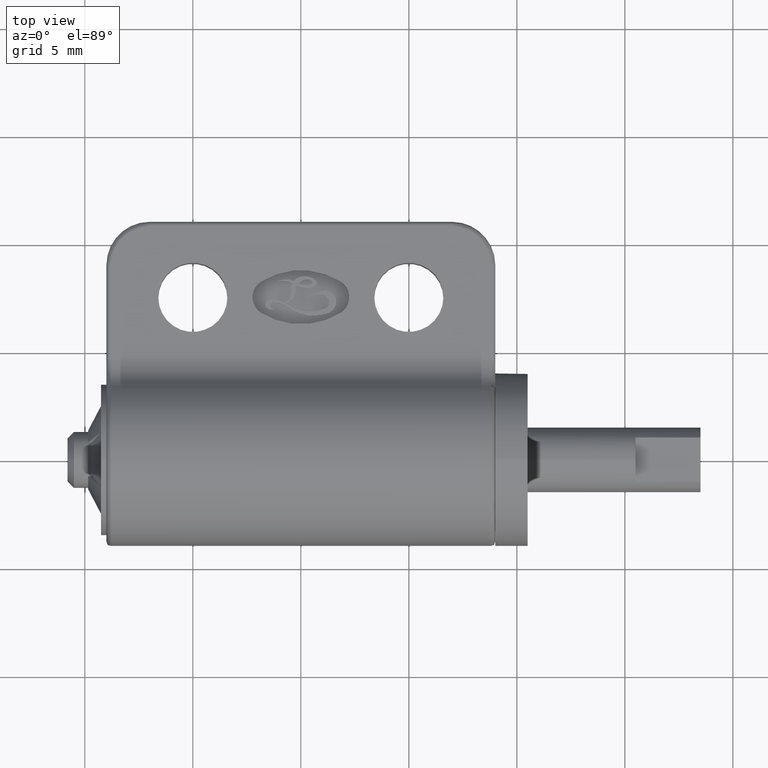
[diagram: clean part render]
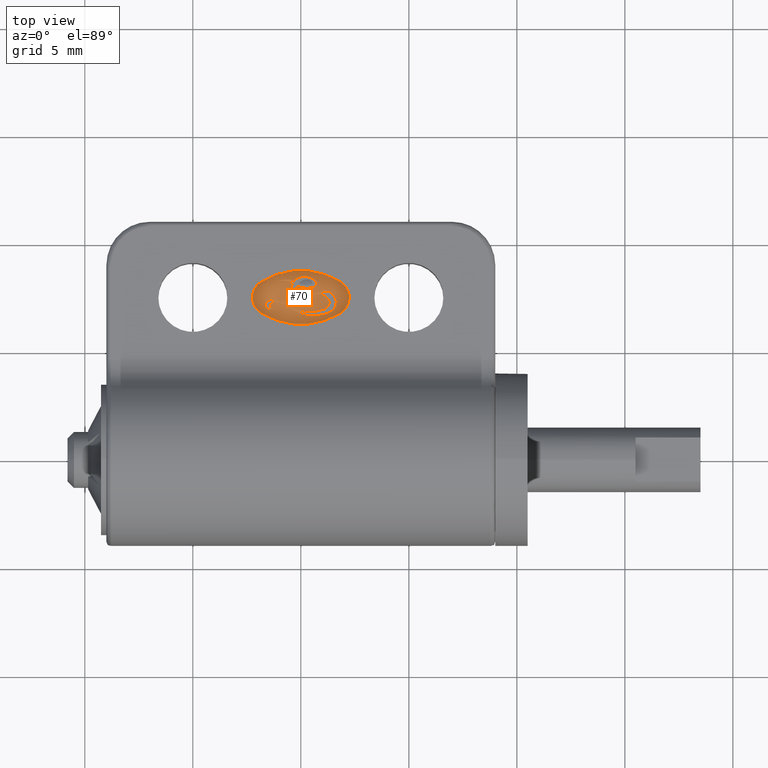
[diagram: same view with one face highlighted and labeled with its STEP entity id]
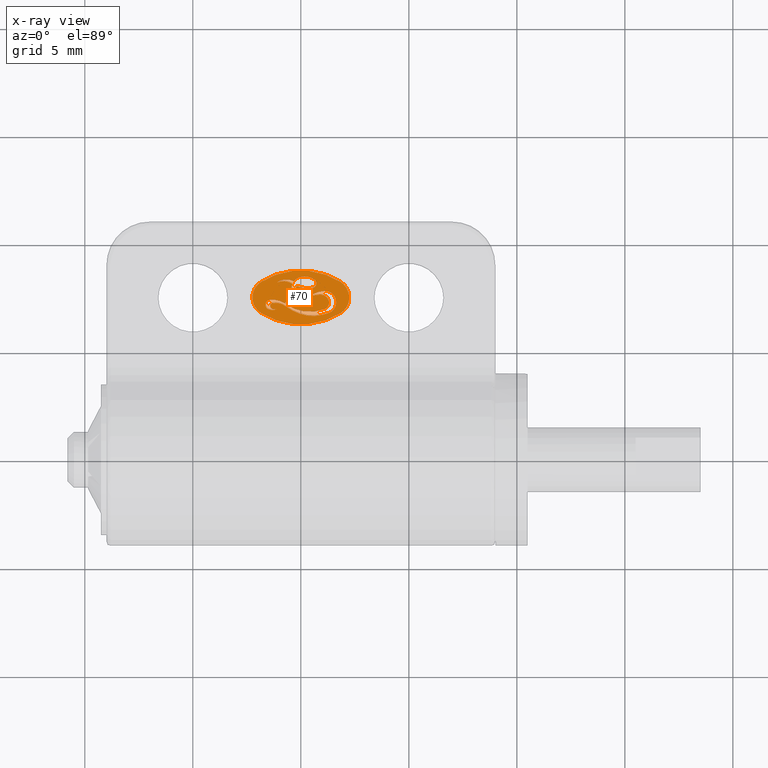
[diagram: x-ray of the same camera — body ghosted, the highlighted face saturated]
A machine part, top view. The second image highlights one B-rep face of the part: STEP entity #70.
The next image is the same camera in x-ray: the body ghosted, the highlighted face saturated — about 0% of this face is hidden behind the body in this view.
In plain terms, the highlighted planar face has unit normal (0, 0, 1).
Its self-contained STEP definition (entity closure, byte-faithful):
#70=ADVANCED_FACE('',(#488,#489),#487,.T.);
#487=PLANE('',#1847);
#488=FACE_OUTER_BOUND('',#1848,.T.);
#489=FACE_BOUND('',#1849,.T.);
#1844=CARTESIAN_POINT('',(-3.59707353473E+00,5.25520833333E+00,1.20000000000E+00));
#1845=DIRECTION('',(0.00000000000E+00,0.00000000000E+00,1.00000000000E+00));
#1846=DIRECTION('',(1.00000000000E+00,0.00000000000E+00,0.00000000000E+00));
#1847=AXIS2_PLACEMENT_3D('',#1844,#1845,#1846);
#1848=EDGE_LOOP('',(#2874,#2875,#2876,#2877));
#1849=EDGE_LOOP('',(#2878,#2879,#2880,#2881,#2882,#2883,#2884,#2885,#2886,#2887,#2888,#2889,#2890,#2891,#2892,#2893,#2894,#2895,#2896,#2897,#2898,#2899,#2900,#2901,#2902,#2903,#2904));
#2874=ORIENTED_EDGE('',*,*,#3654,.F.);
#2875=ORIENTED_EDGE('',*,*,#3663,.F.);
#2876=ORIENTED_EDGE('',*,*,#3660,.F.);
#2877=ORIENTED_EDGE('',*,*,#3657,.F.);
#2878=ORIENTED_EDGE('',*,*,#3664,.T.);
#2879=ORIENTED_EDGE('',*,*,#3665,.T.);
#2880=ORIENTED_EDGE('',*,*,#3666,.T.);
#2881=ORIENTED_EDGE('',*,*,#3667,.T.);
#2882=ORIENTED_EDGE('',*,*,#3668,.T.);
#2883=ORIENTED_EDGE('',*,*,#3669,.T.);
#2884=ORIENTED_EDGE('',*,*,#3670,.T.);
#2885=ORIENTED_EDGE('',*,*,#3671,.T.);
#2886=ORIENTED_EDGE('',*,*,#3672,.T.);
#2887=ORIENTED_EDGE('',*,*,#3673,.T.);
#2888=ORIENTED_EDGE('',*,*,#3674,.T.);
#2889=ORIENTED_EDGE('',*,*,#3675,.T.);
#2890=ORIENTED_EDGE('',*,*,#3676,.T.);
#2891=ORIENTED_EDGE('',*,*,#3677,.T.);
#2892=ORIENTED_EDGE('',*,*,#3678,.T.);
#2893=ORIENTED_EDGE('',*,*,#3679,.T.);
#2894=ORIENTED_EDGE('',*,*,#3680,.T.);
#2895=ORIENTED_EDGE('',*,*,#3681,.T.);
#2896=ORIENTED_EDGE('',*,*,#3682,.T.);
#2897=ORIENTED_EDGE('',*,*,#3683,.T.);
#2898=ORIENTED_EDGE('',*,*,#3684,.T.);
#2899=ORIENTED_EDGE('',*,*,#3685,.T.);
#2900=ORIENTED_EDGE('',*,*,#3686,.T.);
#2901=ORIENTED_EDGE('',*,*,#3687,.T.);
#2902=ORIENTED_EDGE('',*,*,#3688,.T.);
#2903=ORIENTED_EDGE('',*,*,#3689,.T.);
#2904=ORIENTED_EDGE('',*,*,#3690,.T.);
#3654=EDGE_CURVE('',#4634,#4641,#4642,.T.);
#3657=EDGE_CURVE('',#4641,#4661,#4662,.T.);
#3660=EDGE_CURVE('',#4661,#4681,#4682,.T.);
#3663=EDGE_CURVE('',#4681,#4634,#4700,.T.);
#3664=EDGE_CURVE('',#4706,#4707,#4708,.T.);
#3665=EDGE_CURVE('',#4707,#4714,#4715,.T.);
#3666=EDGE_CURVE('',#4714,#4721,#4722,.T.);
#3667=EDGE_CURVE('',#4721,#4728,#4729,.T.);
#3668=EDGE_CURVE('',#4728,#4735,#4736,.T.);
#3669=EDGE_CURVE('',#4735,#4742,#4743,.T.);
#3670=EDGE_CURVE('',#4742,#4749,#4750,.T.);
#3671=EDGE_CURVE('',#4749,#4756,#4757,.T.);
#3672=EDGE_CURVE('',#4756,#4763,#4764,.T.);
#3673=EDGE_CURVE('',#4763,#4770,#4771,.T.);
#3674=EDGE_CURVE('',#4770,#4777,#4778,.T.);
#3675=EDGE_CURVE('',#4777,#4784,#4785,.T.);
#3676=EDGE_CURVE('',#4784,#4791,#4792,.T.);
#3677=EDGE_CURVE('',#4791,#4798,#4799,.T.);
#3678=EDGE_CURVE('',#4798,#4805,#4806,.T.);
#3679=EDGE_CURVE('',#4805,#4812,#4813,.T.);
#3680=EDGE_CURVE('',#4812,#4819,#4820,.T.);
#3681=EDGE_CURVE('',#4819,#4826,#4827,.T.);
#3682=EDGE_CURVE('',#4826,#4833,#4834,.T.);
#3683=EDGE_CURVE('',#4833,#4840,#4841,.T.);
#3684=EDGE_CURVE('',#4840,#4847,#4848,.T.);
#3685=EDGE_CURVE('',#4847,#4854,#4855,.T.);
#3686=EDGE_CURVE('',#4854,#4861,#4862,.T.);
#3687=EDGE_CURVE('',#4861,#4868,#4869,.T.);
#3688=EDGE_CURVE('',#4868,#4875,#4876,.T.);
#3689=EDGE_CURVE('',#4875,#4882,#4883,.T.);
#3690=EDGE_CURVE('',#4882,#4706,#4889,.T.);
#4634=VERTEX_POINT('',#7084);
#4641=VERTEX_POINT('',#7088);
#4642=CIRCLE('',#7092,3.47222222222E+00);
#4661=VERTEX_POINT('',#7101);
#4662=CIRCLE('',#7105,8.52777777778E-01);
#4681=VERTEX_POINT('',#7114);
#4682=CIRCLE('',#7118,3.47222222222E+00);
#4700=CIRCLE('',#7129,8.52777777778E-01);
#4706=VERTEX_POINT('',#7130);
#4707=VERTEX_POINT('',#7131);
#4708=CIRCLE('',#7135,1.00000000000E+00);
#4714=VERTEX_POINT('',#7136);
#4715=CIRCLE('',#7140,6.38888888889E-01);
#4721=VERTEX_POINT('',#7141);
#4722=LINE('',#7142,#7143);
#4728=VERTEX_POINT('',#7145);
#4729=CIRCLE('',#7149,5.83333333333E-01);
#4735=VERTEX_POINT('',#7150);
#4736=CIRCLE('',#7154,7.77777777778E-01);
#4742=VERTEX_POINT('',#7155);
#4743=CIRCLE('',#7159,7.77777777778E-01);
#4749=VERTEX_POINT('',#7160);
#4750=CIRCLE('',#7164,5.83333333333E-01);
#4756=VERTEX_POINT('',#7165);
#4757=CIRCLE('',#7169,8.33333333333E-01);
#4763=VERTEX_POINT('',#7170);
#4764=CIRCLE('',#7174,2.08333333333E-01);
#4770=VERTEX_POINT('',#7175);
#4771=CIRCLE('',#7179,1.21621125314E+00);
#4777=VERTEX_POINT('',#7180);
#4778=CIRCLE('',#7184,5.55555555556E-01);
#4784=VERTEX_POINT('',#7185);
#4785=LINE('',#7186,#7187);
#4791=VERTEX_POINT('',#7189);
#4792=CIRCLE('',#7193,5.55555555556E-01);
#4798=VERTEX_POINT('',#7194);
#4799=CIRCLE('',#7198,1.00000000000E+00);
#4805=VERTEX_POINT('',#7199);
#4806=CIRCLE('',#7203,1.91091961229E+00);
#4812=VERTEX_POINT('',#7204);
#4813=CIRCLE('',#7208,3.19444444444E-01);
#4819=VERTEX_POINT('',#7209);
#4820=CIRCLE('',#7213,4.16666666667E-01);
#4826=VERTEX_POINT('',#7214);
#4827=CIRCLE('',#7218,1.52721583070E+00);
#4833=VERTEX_POINT('',#7219);
#4834=CIRCLE('',#7223,1.42056437111E+00);
#4840=VERTEX_POINT('',#7224);
#4841=CIRCLE('',#7228,5.27777777778E-01);
#4847=VERTEX_POINT('',#7229);
#4848=CIRCLE('',#7233,2.10133433759E+00);
#4854=VERTEX_POINT('',#7234);
#4855=CIRCLE('',#7238,2.22712133582E+00);
#4861=VERTEX_POINT('',#7239);
#4862=CIRCLE('',#7243,8.33333333333E-01);
#4868=VERTEX_POINT('',#7244);
#4869=CIRCLE('',#7248,1.38888888889E-01);
#4875=VERTEX_POINT('',#7249);
#4876=CIRCLE('',#7253,2.50000000000E-01);
#4882=VERTEX_POINT('',#7254);
#4883=CIRCLE('',#7258,4.72222222222E-01);
#4889=CIRCLE('',#7262,2.22222222222E-01);
#7084=CARTESIAN_POINT('',(1.83828368074E+00,6.77654059149E+00,1.20000000000E+00));
#7088=CARTESIAN_POINT('',(-1.83828368074E+00,6.77654059149E+00,1.20000000000E+00));
#7089=CARTESIAN_POINT('',(0.00000000000E+00,9.72222222222E+00,1.20000000000E+00));
#7090=DIRECTION('',(0.00000000000E+00,0.00000000000E+00,-1.00000000000E+00));
#7091=DIRECTION('',(-5.29425700053E-01,8.48356309650E-01,-0.00000000000E+00));
#7092=AXIS2_PLACEMENT_3D('',#7089,#7090,#7091);
#7101=CARTESIAN_POINT('',(-1.83828368074E+00,8.22345940851E+00,1.20000000000E+00));
#7102=CARTESIAN_POINT('',(-1.38680120875E+00,7.50000000000E+00,1.20000000000E+00));
#7103=DIRECTION('',(-0.00000000000E+00,0.00000000000E+00,-1.00000000000E+00));
#7104=DIRECTION('',(5.29425700053E-01,8.48356309650E-01,-0.00000000000E+00));
#7105=AXIS2_PLACEMENT_3D('',#7102,#7103,#7104);
#7114=CARTESIAN_POINT('',(1.83828368074E+00,8.22345940851E+00,1.20000000000E+00));
#7115=CARTESIAN_POINT('',(0.00000000000E+00,5.27777777778E+00,1.20000000000E+00));
#7116=DIRECTION('',(0.00000000000E+00,0.00000000000E+00,-1.00000000000E+00));
#7117=DIRECTION('',(5.29425700053E-01,-8.48356309650E-01,-0.00000000000E+00));
#7118=AXIS2_PLACEMENT_3D('',#7115,#7116,#7117);
#7126=CARTESIAN_POINT('',(1.38680120875E+00,7.50000000000E+00,1.20000000000E+00));
#7127=DIRECTION('',(0.00000000000E+00,0.00000000000E+00,-1.00000000000E+00));
#7128=DIRECTION('',(-5.29425700053E-01,-8.48356309650E-01,-0.00000000000E+00));
#7129=AXIS2_PLACEMENT_3D('',#7126,#7127,#7128);
#7130=CARTESIAN_POINT('',(-1.45047222618E+00,7.38630250208E+00,1.20000000000E+00));
#7131=CARTESIAN_POINT('',(-7.53527418613E-01,7.23649439948E+00,1.20000000000E+00));
#7132=CARTESIAN_POINT('',(-1.29834720838E+00,6.39794124274E+00,1.20000000000E+00));
#7133=DIRECTION('',(0.00000000000E+00,0.00000000000E+00,-1.00000000000E+00));
#7134=DIRECTION('',(1.52125017794E-01,-9.88361259338E-01,-0.00000000000E+00));
#7135=AXIS2_PLACEMENT_3D('',#7132,#7133,#7134);
#7136=CARTESIAN_POINT('',(-4.44444444444E-01,7.78367542159E+00,1.20000000000E+00));
#7137=CARTESIAN_POINT('',(-1.08333333333E+00,7.78367542159E+00,1.20000000000E+00));
#7138=DIRECTION('',(0.00000000000E+00,0.00000000000E+00,1.00000000000E+00));
#7139=DIRECTION('',(-5.16217953475E-01,8.56457252004E-01,-0.00000000000E+00));
#7140=AXIS2_PLACEMENT_3D('',#7137,#7138,#7139);
#7141=CARTESIAN_POINT('',(-4.44444444444E-01,7.89177560960E+00,1.20000000000E+00));
#7142=CARTESIAN_POINT('',(-4.44444444444E-01,7.78367542159E+00,1.20000000000E+00));
#7143=VECTOR('',#7144,1.08100188012E-01);
#7144=DIRECTION('',(0.00000000000E+00,1.00000000000E+00,0.00000000000E+00));
#7145=CARTESIAN_POINT('',(-3.89051867260E-01,8.13988110284E+00,1.20000000000E+00));
#7146=CARTESIAN_POINT('',(1.38888888889E-01,7.89177560960E+00,1.20000000000E+00));
#7147=DIRECTION('',(0.00000000000E+00,0.00000000000E+00,-1.00000000000E+00));
#7148=DIRECTION('',(1.00000000000E+00,-1.20284734554E-13,-0.00000000000E+00));
#7149=AXIS2_PLACEMENT_3D('',#7146,#7147,#7148);
#7150=CARTESIAN_POINT('',(-1.11111111111E+00,8.19444444444E+00,1.20000000000E+00));
#7151=CARTESIAN_POINT('',(-8.01951084446E-01,7.48075098818E+00,1.20000000000E+00));
#7152=DIRECTION('',(0.00000000000E+00,-0.00000000000E+00,1.00000000000E+00));
#7153=DIRECTION('',(-5.30870422096E-01,-8.47453004563E-01,-0.00000000000E+00));
#7154=AXIS2_PLACEMENT_3D('',#7151,#7152,#7153);
#7155=CARTESIAN_POINT('',(-3.21905020557E-01,8.24947206023E+00,1.20000000000E+00));
#7156=CARTESIAN_POINT('',(-6.69927614506E-01,7.55390139833E+00,1.20000000000E+00));
#7157=DIRECTION('',(0.00000000000E+00,0.00000000000E+00,-1.00000000000E+00));
#7158=DIRECTION('',(5.67235924206E-01,-8.23555345007E-01,-0.00000000000E+00));
#7159=AXIS2_PLACEMENT_3D('',#7156,#7157,#7158);
#7160=CARTESIAN_POINT('',(-9.99200722163E-15,8.45833333333E+00,1.20000000000E+00));
#7161=CARTESIAN_POINT('',(1.38888888889E-01,7.89177560960E+00,1.20000000000E+00));
#7162=DIRECTION('',(0.00000000000E+00,0.00000000000E+00,-1.00000000000E+00));
#7163=DIRECTION('',(7.89932416192E-01,-6.13193915372E-01,-0.00000000000E+00));
#7164=AXIS2_PLACEMENT_3D('',#7161,#7162,#7163);
#7165=CARTESIAN_POINT('',(6.32937987213E-01,8.32374587412E+00,1.20000000000E+00));
#7166=CARTESIAN_POINT('',(1.56741593917E-01,7.63987348876E+00,1.20000000000E+00));
#7167=DIRECTION('',(0.00000000000E+00,0.00000000000E+00,-1.00000000000E+00));
#7168=DIRECTION('',(1.88089912700E-01,-9.82151813489E-01,-0.00000000000E+00));
#7169=AXIS2_PLACEMENT_3D('',#7166,#7167,#7168);
#7170=CARTESIAN_POINT('',(5.56952415656E-01,7.94894375108E+00,1.20000000000E+00));
#7171=CARTESIAN_POINT('',(5.13888888889E-01,8.15277777778E+00,1.20000000000E+00));
#7172=DIRECTION('',(0.00000000000E+00,0.00000000000E+00,-1.00000000000E+00));
#7173=DIRECTION('',(-5.71435671956E-01,-8.20646862430E-01,-0.00000000000E+00));
#7174=AXIS2_PLACEMENT_3D('',#7171,#7172,#7173);
#7175=CARTESIAN_POINT('',(-1.90291781542E-01,8.02834612494E+00,1.20000000000E+00));
#7176=CARTESIAN_POINT('',(3.05555555556E-01,9.13888888889E+00,1.20000000000E+00));
#7177=DIRECTION('',(0.00000000000E+00,0.00000000000E+00,-1.00000000000E+00));
#7178=DIRECTION('',(-2.06704928483E-01,9.78403328153E-01,-0.00000000000E+00));
#7179=AXIS2_PLACEMENT_3D('',#7176,#7177,#7178);
#7180=CARTESIAN_POINT('',(-2.50000000000E-01,7.77779195195E+00,1.20000000000E+00));
#7181=CARTESIAN_POINT('',(3.05555555556E-01,7.77779195195E+00,1.20000000000E+00));
#7182=DIRECTION('',(0.00000000000E+00,0.00000000000E+00,1.00000000000E+00));
#7183=DIRECTION('',(8.92525206775E-01,-4.50997511380E-01,-0.00000000000E+00));
#7184=AXIS2_PLACEMENT_3D('',#7181,#7182,#7183);
#7185=CARTESIAN_POINT('',(-2.50000000000E-01,7.76388888889E+00,1.20000000000E+00));
#7186=CARTESIAN_POINT('',(-2.50000000000E-01,7.77779195195E+00,1.20000000000E+00));
#7187=VECTOR('',#7188,1.39030630622E-02);
#7188=DIRECTION('',(0.00000000000E+00,-1.00000000000E+00,0.00000000000E+00));
#7189=CARTESIAN_POINT('',(-7.21425109841E-01,7.21474041770E+00,1.20000000000E+00));
#7190=CARTESIAN_POINT('',(-8.05555555555E-01,7.76388888889E+00,1.20000000000E+00));
#7191=DIRECTION('',(0.00000000000E+00,0.00000000000E+00,-1.00000000000E+00));
#7192=DIRECTION('',(-1.00000000000E+00,-0.00000000000E+00,-0.00000000000E+00));
#7193=AXIS2_PLACEMENT_3D('',#7190,#7191,#7192);
#7194=CARTESIAN_POINT('',(-7.09181548222E-01,7.20595351052E+00,1.20000000000E+00));
#7195=CARTESIAN_POINT('',(-1.29834720838E+00,6.39794124274E+00,1.20000000000E+00));
#7196=DIRECTION('',(0.00000000000E+00,0.00000000000E+00,-1.00000000000E+00));
#7197=DIRECTION('',(-5.76922098541E-01,-8.16799174960E-01,-0.00000000000E+00));
#7198=AXIS2_PLACEMENT_3D('',#7195,#7196,#7197);
#7199=CARTESIAN_POINT('',(1.10041126978E+00,6.96559335286E+00,1.20000000000E+00));
#7200=CARTESIAN_POINT('',(4.16666666667E-01,8.75000000000E+00,1.20000000000E+00));
#7201=DIRECTION('',(0.00000000000E+00,0.00000000000E+00,1.00000000000E+00));
#7202=DIRECTION('',(5.89165660160E-01,8.08012267783E-01,-0.00000000000E+00));
#7203=AXIS2_PLACEMENT_3D('',#7200,#7201,#7202);
#7204=CARTESIAN_POINT('',(1.27235425161E+00,7.40569727229E+00,1.20000000000E+00));
#7205=CARTESIAN_POINT('',(9.86111111111E-01,7.26388888889E+00,1.20000000000E+00));
#7206=DIRECTION('',(0.00000000000E+00,0.00000000000E+00,1.00000000000E+00));
#7207=DIRECTION('',(-3.57809192345E-01,9.33794721485E-01,-0.00000000000E+00));
#7208=AXIS2_PLACEMENT_3D('',#7205,#7206,#7207);
#7209=CARTESIAN_POINT('',(8.81940955056E-01,7.63704738349E+00,1.20000000000E+00));
#7210=CARTESIAN_POINT('',(8.98993633568E-01,7.22072981568E+00,1.20000000000E+00));
#7211=DIRECTION('',(0.00000000000E+00,-0.00000000000E+00,1.00000000000E+00));
#7212=DIRECTION('',(-8.96065483303E-01,-4.43921895870E-01,-0.00000000000E+00));
#7213=AXIS2_PLACEMENT_3D('',#7210,#7211,#7212);
#7214=CARTESIAN_POINT('',(3.09325677705E-01,7.50000000000E+00,1.20000000000E+00));
#7215=CARTESIAN_POINT('',(9.44444444444E-01,6.11111111111E+00,1.20000000000E+00));
#7216=DIRECTION('',(0.00000000000E+00,0.00000000000E+00,1.00000000000E+00));
#7217=DIRECTION('',(4.09264284272E-02,-9.99162162742E-01,-0.00000000000E+00));
#7218=AXIS2_PLACEMENT_3D('',#7215,#7216,#7217);
#7219=CARTESIAN_POINT('',(1.06184795930E+00,7.80325139709E+00,1.20000000000E+00));
#7220=CARTESIAN_POINT('',(1.19444444444E+00,6.38888888889E+00,1.20000000000E+00));
#7221=DIRECTION('',(0.00000000000E+00,0.00000000000E+00,-1.00000000000E+00));
#7222=DIRECTION('',(6.23075437298E-01,-7.82161747618E-01,-0.00000000000E+00));
#7223=AXIS2_PLACEMENT_3D('',#7220,#7221,#7222);
#7224=CARTESIAN_POINT('',(1.29744688323E+00,6.78398798166E+00,1.20000000000E+00));
#7225=CARTESIAN_POINT('',(1.11111111111E+00,7.27777777778E+00,1.20000000000E+00));
#7226=DIRECTION('',(0.00000000000E+00,0.00000000000E+00,-1.00000000000E+00));
#7227=DIRECTION('',(9.33407086931E-02,-9.95634226059E-01,-0.00000000000E+00));
#7228=AXIS2_PLACEMENT_3D('',#7225,#7226,#7227);
#7229=CARTESIAN_POINT('',(3.02639517855E-01,6.66394164123E+00,1.20000000000E+00));
#7230=CARTESIAN_POINT('',(5.55555555556E-01,8.75000000000E+00,1.20000000000E+00));
#7231=DIRECTION('',(0.00000000000E+00,0.00000000000E+00,-1.00000000000E+00));
#7232=DIRECTION('',(-3.53057252434E-01,9.35601718951E-01,-0.00000000000E+00));
#7233=AXIS2_PLACEMENT_3D('',#7230,#7231,#7232);
#7234=CARTESIAN_POINT('',(-6.79608299395E-01,7.08695971954E+00,1.20000000000E+00));
#7235=CARTESIAN_POINT('',(6.66666666667E-01,8.86111111111E+00,1.20000000000E+00));
#7236=DIRECTION('',(-0.00000000000E+00,0.00000000000E+00,-1.00000000000E+00));
#7237=DIRECTION('',(1.63451870788E-01,9.86551309327E-01,-0.00000000000E+00));
#7238=AXIS2_PLACEMENT_3D('',#7235,#7236,#7237);
#7239=CARTESIAN_POINT('',(-1.29666316128E+00,7.24871004187E+00,1.20000000000E+00));
#7240=CARTESIAN_POINT('',(-1.18335086026E+00,6.42311645730E+00,1.20000000000E+00));
#7241=DIRECTION('',(0.00000000000E+00,-0.00000000000E+00,1.00000000000E+00));
#7242=DIRECTION('',(-6.04491073033E-01,-7.96611914688E-01,-0.00000000000E+00));
#7243=AXIS2_PLACEMENT_3D('',#7240,#7241,#7242);
#7244=CARTESIAN_POINT('',(-1.35967928773E+00,6.99894041028E+00,1.20000000000E+00));
#7245=CARTESIAN_POINT('',(-1.27777777778E+00,7.11111111111E+00,1.20000000000E+00));
#7246=DIRECTION('',(0.00000000000E+00,0.00000000000E+00,1.00000000000E+00));
#7247=DIRECTION('',(1.35974761231E-01,-9.90712301482E-01,-0.00000000000E+00));
#7248=AXIS2_PLACEMENT_3D('',#7245,#7246,#7247);
#7249=CARTESIAN_POINT('',(-1.11111111111E+00,6.97222222222E+00,1.20000000000E+00));
#7250=CARTESIAN_POINT('',(-1.21225656982E+00,7.20084767177E+00,1.20000000000E+00));
#7251=DIRECTION('',(0.00000000000E+00,0.00000000000E+00,1.00000000000E+00));
#7252=DIRECTION('',(5.89690871644E-01,8.07629045973E-01,-0.00000000000E+00));
#7253=AXIS2_PLACEMENT_3D('',#7250,#7251,#7252);
#7254=CARTESIAN_POINT('',(-1.50404221584E+00,6.96234283190E+00,1.20000000000E+00));
#7255=CARTESIAN_POINT('',(-1.31836917384E+00,7.39653098078E+00,1.20000000000E+00));
#7256=DIRECTION('',(0.00000000000E+00,0.00000000000E+00,-1.00000000000E+00));
#7257=DIRECTION('',(-4.38899426964E-01,8.98536194602E-01,-0.00000000000E+00));
#7258=AXIS2_PLACEMENT_3D('',#7255,#7256,#7257);
#7259=CARTESIAN_POINT('',(-1.41666666667E+00,7.16666666667E+00,1.20000000000E+00));
#7260=DIRECTION('',(-0.00000000000E+00,0.00000000000E+00,-1.00000000000E+00));
#7261=DIRECTION('',(3.93189971290E-01,9.19457256471E-01,-0.00000000000E+00));
#7262=AXIS2_PLACEMENT_3D('',#7259,#7260,#7261);